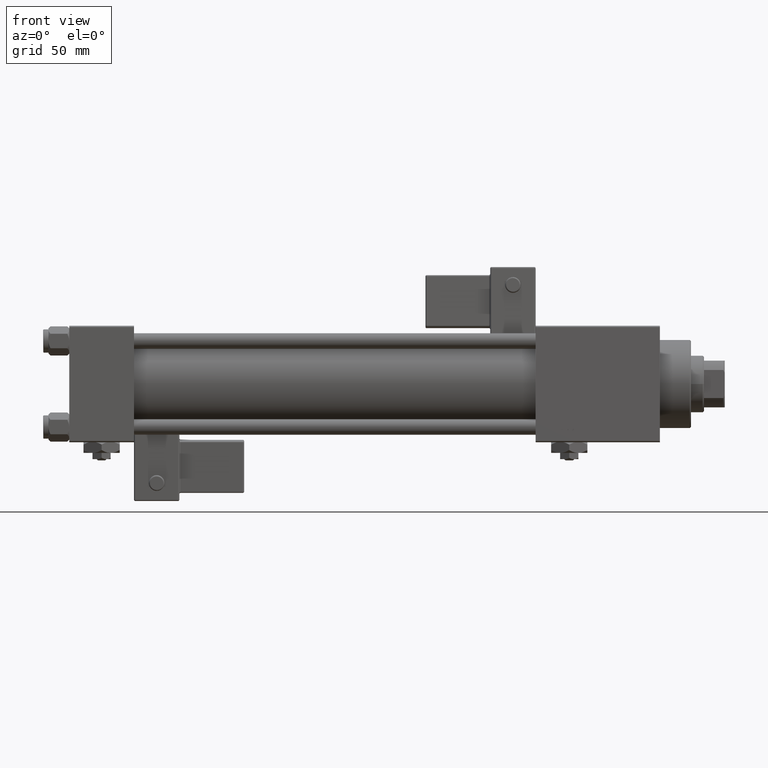
[diagram: clean part render]
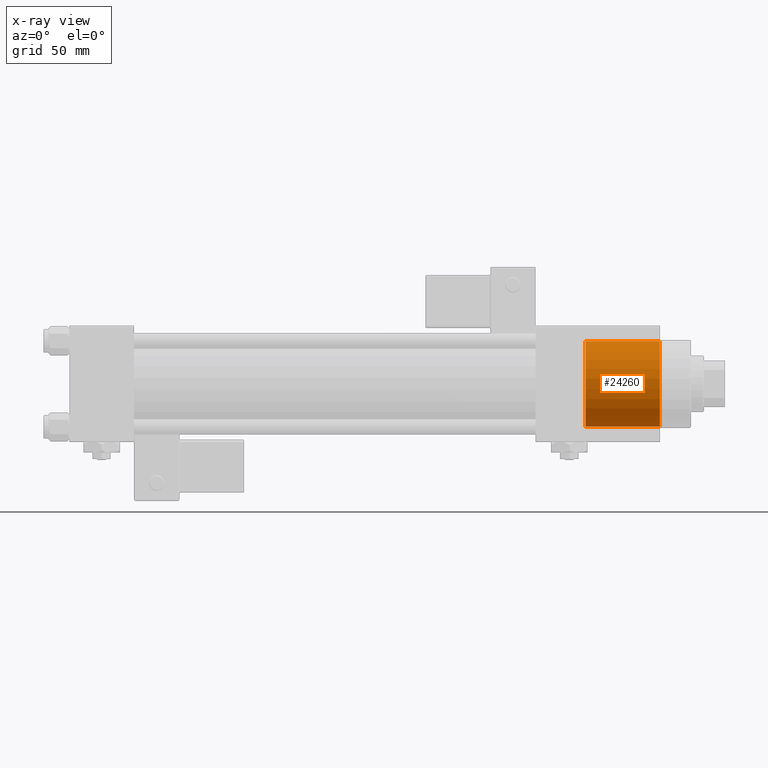
[diagram: x-ray — body ghosted, one internal face saturated and labeled with its STEP entity id]
A machine part, front view, then the same camera in x-ray: the body is ghosted and one INTERNAL B-rep face — a face not visible from any outside direction — is saturated and labeled: STEP entity #24260.
In plain terms, the highlighted cylindrical surface (partial cylindrical patch) has radius 16.5 mm, axis along (-1, -0, -0).
Its self-contained STEP definition (entity closure, byte-faithful):
#316 = CARTESIAN_POINT ( 'NONE',  ( -16.50000000000000000, 0.000000000000000000, 28.69999999999999929 ) ) ;
#1258 = LINE ( 'NONE', #18465, #41359 ) ;
#1357 = CYLINDRICAL_SURFACE ( 'NONE', #52381, 16.50000000000000000 ) ;
#5940 = ORIENTED_EDGE ( 'NONE', *, *, #21018, .F. ) ;
#9644 = ORIENTED_EDGE ( 'NONE', *, *, #52844, .T. ) ;
#9746 = CARTESIAN_POINT ( 'NONE',  ( 16.50000000000000000, 2.020667218593133100E-15, 28.69999999999999929 ) ) ;
#11104 = CARTESIAN_POINT ( 'NONE',  ( 0.000000000000000000, 0.000000000000000000, 0.000000000000000000 ) ) ;
#12761 = EDGE_LOOP ( 'NONE', ( #32851, #5940, #48872, #9644 ) ) ;
#13667 = CARTESIAN_POINT ( 'NONE',  ( -16.50000000000000000, 0.000000000000000000, 0.000000000000000000 ) ) ;
#15476 = AXIS2_PLACEMENT_3D ( 'NONE', #38460, #24917, #47210 ) ;
#18465 = CARTESIAN_POINT ( 'NONE',  ( -16.50000000000000000, 0.000000000000000000, 28.69999999999999929 ) ) ;
#19572 = DIRECTION ( 'NONE',  ( 0.000000000000000000, 0.000000000000000000, 1.000000000000000000 ) ) ;
#21018 = EDGE_CURVE ( 'NONE', #53698, #36131, #37095, .T. ) ;
#21648 = VERTEX_POINT ( 'NONE', #43663 ) ;
#24260 = ADVANCED_FACE ( 'NONE', ( #52411 ), #1357, .T. ) ;
#24917 = DIRECTION ( 'NONE',  ( 0.000000000000000000, 0.000000000000000000, 1.000000000000000000 ) ) ;
#28211 = CIRCLE ( 'NONE', #52546, 16.50000000000000000 ) ;
#30700 = DIRECTION ( 'NONE',  ( -1.000000000000000000, 0.000000000000000000, 0.000000000000000000 ) ) ;
#32773 = VECTOR ( 'NONE', #48949, 1000.000000000000000 ) ;
#32851 = ORIENTED_EDGE ( 'NONE', *, *, #50888, .F. ) ;
#35668 = DIRECTION ( 'NONE',  ( -0.000000000000000000, -0.000000000000000000, -1.000000000000000000 ) ) ;
#36131 = VERTEX_POINT ( 'NONE', #55715 ) ;
#36265 = VERTEX_POINT ( 'NONE', #13667 ) ;
#36781 = DIRECTION ( 'NONE',  ( 1.000000000000000000, 0.000000000000000000, 0.000000000000000000 ) ) ;
#37095 = CIRCLE ( 'NONE', #15476, 16.50000000000000000 ) ;
#38460 = CARTESIAN_POINT ( 'NONE',  ( 0.000000000000000000, 0.000000000000000000, 28.69999999999999929 ) ) ;
#40276 = CARTESIAN_POINT ( 'NONE',  ( 0.000000000000000000, 0.000000000000000000, 28.69999999999999929 ) ) ;
#40504 = EDGE_CURVE ( 'NONE', #53698, #36265, #1258, .T. ) ;
#41359 = VECTOR ( 'NONE', #35668, 1000.000000000000000 ) ;
#43663 = CARTESIAN_POINT ( 'NONE',  ( 16.50000000000000000, 2.020667218593133100E-15, 0.000000000000000000 ) ) ;
#47210 = DIRECTION ( 'NONE',  ( 1.000000000000000000, 0.000000000000000000, 0.000000000000000000 ) ) ;
#48872 = ORIENTED_EDGE ( 'NONE', *, *, #40504, .T. ) ;
#48949 = DIRECTION ( 'NONE',  ( -0.000000000000000000, -0.000000000000000000, -1.000000000000000000 ) ) ;
#50888 = EDGE_CURVE ( 'NONE', #36131, #21648, #52900, .T. ) ;
#52381 = AXIS2_PLACEMENT_3D ( 'NONE', #40276, #53251, #30700 ) ;
#52411 = FACE_OUTER_BOUND ( 'NONE', #12761, .T. ) ;
#52546 = AXIS2_PLACEMENT_3D ( 'NONE', #11104, #19572, #36781 ) ;
#52844 = EDGE_CURVE ( 'NONE', #36265, #21648, #28211, .T. ) ;
#52900 = LINE ( 'NONE', #9746, #32773 ) ;
#53251 = DIRECTION ( 'NONE',  ( -0.000000000000000000, -0.000000000000000000, -1.000000000000000000 ) ) ;
#53698 = VERTEX_POINT ( 'NONE', #316 ) ;
#55715 = CARTESIAN_POINT ( 'NONE',  ( 16.50000000000000000, 2.020667218593133100E-15, 28.69999999999999929 ) ) ;